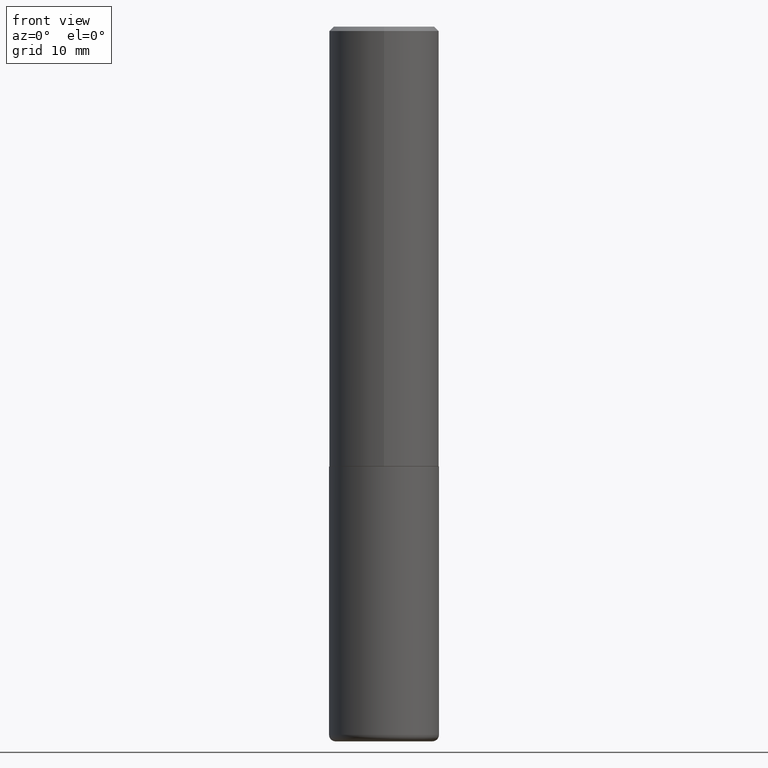
[diagram: clean part render]
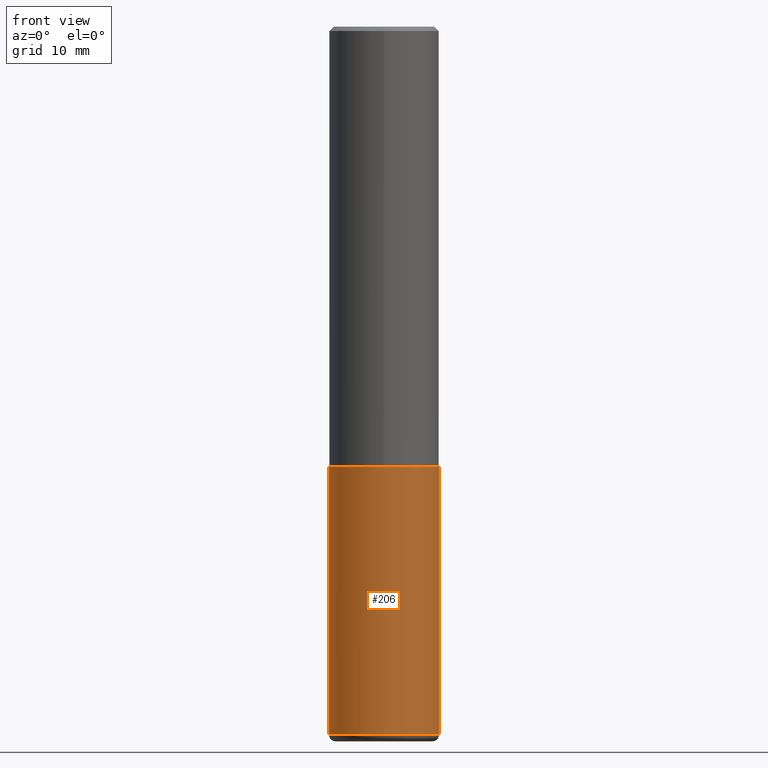
[diagram: same view with one face highlighted and labeled with its STEP entity id]
A machine part, front view. The second image highlights one B-rep face of the part: STEP entity #206.
In plain terms, the highlighted cylindrical surface (partial cylindrical patch) has radius 6.35 mm, axis along (-0, 0, 1).
Its self-contained STEP definition (entity closure, byte-faithful):
#21 = DIRECTION ( 'NONE',  ( 1.000000000000000000, -6.982962677686266711E-15, 4.876176775795935793E-29 ) ) ;
#28 = EDGE_CURVE ( 'NONE', #100, #87, #219, .T. ) ;
#42 = VECTOR ( 'NONE', #214, 39.37007874015748143 ) ;
#44 = EDGE_CURVE ( 'NONE', #87, #355, #48, .T. ) ;
#48 = LINE ( 'NONE', #179, #42 ) ;
#73 = EDGE_LOOP ( 'NONE', ( #125, #370, #97, #142 ) ) ;
#81 = CARTESIAN_POINT ( 'NONE',  ( 0.000000000000000000, 0.000000000000000000, 0.000000000000000000 ) ) ;
#87 = VERTEX_POINT ( 'NONE', #250 ) ;
#97 = ORIENTED_EDGE ( 'NONE', *, *, #44, .T. ) ;
#98 = CIRCLE ( 'NONE', #291, 0.2500000000000000000 ) ;
#100 = VERTEX_POINT ( 'NONE', #218 ) ;
#107 = CYLINDRICAL_SURFACE ( 'NONE', #284, 0.2500000000000000000 ) ;
#113 = CARTESIAN_POINT ( 'NONE',  ( 0.2500000000000000000, -8.728703347107857054E-15, -2.000000000000000000 ) ) ;
#125 = ORIENTED_EDGE ( 'NONE', *, *, #293, .F. ) ;
#142 = ORIENTED_EDGE ( 'NONE', *, *, #211, .F. ) ;
#161 = DIRECTION ( 'NONE',  ( -2.445468806185136597E-29, 3.491481338843145583E-15, 1.000000000000000000 ) ) ;
#179 = CARTESIAN_POINT ( 'NONE',  ( 0.2500000000000000000, -1.745740669421566678E-15, 1.219044193948983948E-29 ) ) ;
#206 = ADVANCED_FACE ( 'NONE', ( #374 ), #107, .T. ) ;
#211 = EDGE_CURVE ( 'NONE', #363, #355, #98, .T. ) ;
#212 = CARTESIAN_POINT ( 'NONE',  ( 7.874409555916140425E-29, -1.124256991107492948E-14, -3.220000000000000195 ) ) ;
#214 = DIRECTION ( 'NONE',  ( -2.445468806185136877E-29, 3.491481338843145188E-15, 1.000000000000000000 ) ) ;
#215 = DIRECTION ( 'NONE',  ( 1.000000000000000000, -6.982962677686266711E-15, 0.000000000000000000 ) ) ;
#218 = CARTESIAN_POINT ( 'NONE',  ( -0.2499999999999998335, -9.466213071674680591E-15, -3.220000000000000195 ) ) ;
#219 = CIRCLE ( 'NONE', #235, 0.2499999999999999722 ) ;
#234 = CARTESIAN_POINT ( 'NONE',  ( -0.2500000000000000000, -7.336409454980359463E-15, -2.000000000000000000 ) ) ;
#235 = AXIS2_PLACEMENT_3D ( 'NONE', #212, #321, #283 ) ;
#250 = CARTESIAN_POINT ( 'NONE',  ( 0.2499999999999998335, -1.298831058049649773E-14, -3.220000000000000195 ) ) ;
#258 = DIRECTION ( 'NONE',  ( -2.445468806185136877E-29, 3.491481338843145188E-15, 1.000000000000000000 ) ) ;
#283 = DIRECTION ( 'NONE',  ( 1.000000000000000000, -6.982962677686263555E-15, 0.000000000000000000 ) ) ;
#284 = AXIS2_PLACEMENT_3D ( 'NONE', #81, #379, #21 ) ;
#291 = AXIS2_PLACEMENT_3D ( 'NONE', #298, #161, #215 ) ;
#293 = EDGE_CURVE ( 'NONE', #100, #363, #318, .T. ) ;
#298 = CARTESIAN_POINT ( 'NONE',  ( 4.890937612370273194E-29, -6.982962677686291165E-15, -2.000000000000000000 ) ) ;
#318 = LINE ( 'NONE', #368, #391 ) ;
#321 = DIRECTION ( 'NONE',  ( -2.445468806185136597E-29, 3.491481338843145583E-15, 1.000000000000000000 ) ) ;
#355 = VERTEX_POINT ( 'NONE', #113 ) ;
#363 = VERTEX_POINT ( 'NONE', #234 ) ;
#368 = CARTESIAN_POINT ( 'NONE',  ( -0.2500000000000000000, 1.776356839400250465E-15, -1.229733772563726445E-29 ) ) ;
#370 = ORIENTED_EDGE ( 'NONE', *, *, #28, .T. ) ;
#374 = FACE_OUTER_BOUND ( 'NONE', #73, .T. ) ;
#379 = DIRECTION ( 'NONE',  ( -2.445468806185136597E-29, 3.491481338843145583E-15, 1.000000000000000000 ) ) ;
#391 = VECTOR ( 'NONE', #258, 39.37007874015748143 ) ;